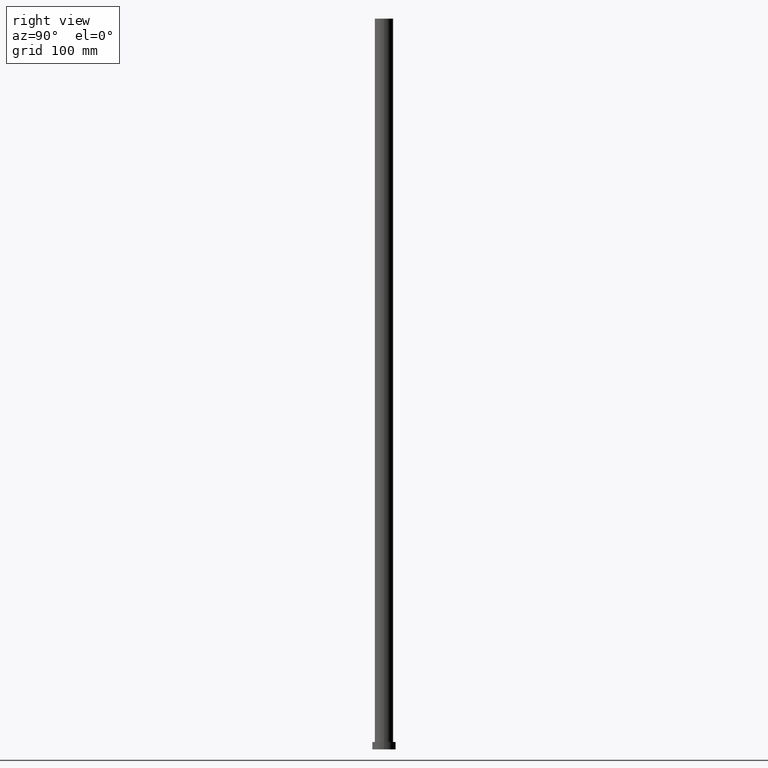
[diagram: clean part render]
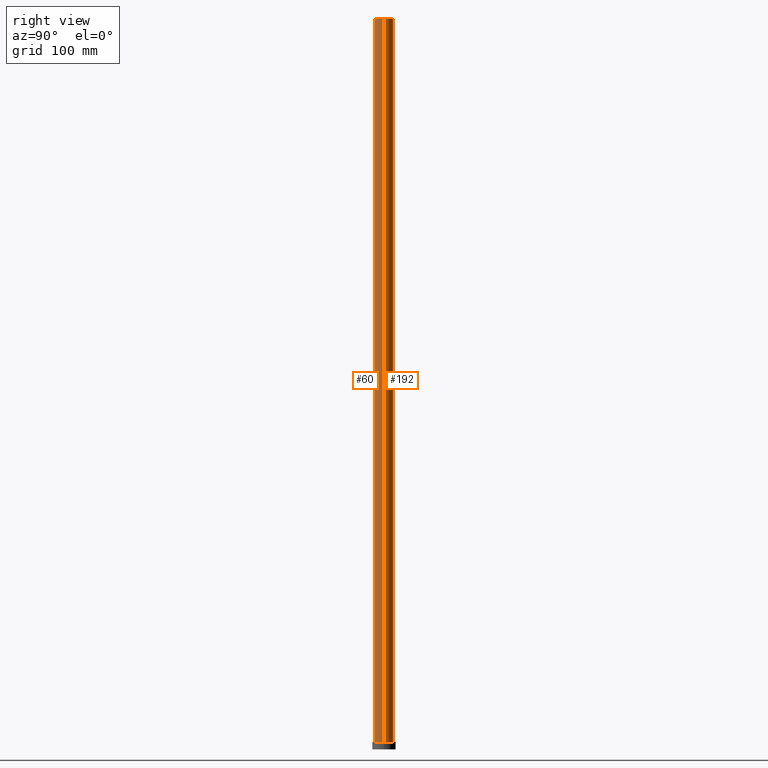
[diagram: same view with one multi-face feature highlighted, each face labeled with its STEP entity id]
A machine part, right view. The highlighted faces form ONE feature: a constant-radius fillet chain: 2 tangent blend faces with common blend radius 12.5 mm. The faces share edges in the B-rep.
Their STEP definitions:
[1] entity #192 (Cylinder):
#4 = CIRCLE ( 'NONE', #148, 12.50000000000000000 ) ;
#12 = DIRECTION ( 'NONE',  ( 0.000000000000000000, 0.000000000000000000, 1.000000000000000000 ) ) ;
#16 = EDGE_CURVE ( 'NONE', #130, #183, #166, .T. ) ;
#24 = DIRECTION ( 'NONE',  ( 1.000000000000000000, 0.000000000000000000, 0.000000000000000000 ) ) ;
#31 = DIRECTION ( 'NONE',  ( -1.000000000000000000, 0.000000000000000000, 0.000000000000000000 ) ) ;
#47 = CARTESIAN_POINT ( 'NONE',  ( 12.50000000000000000, 1.530808498934191521E-15, 1000.000000000000000 ) ) ;
#56 = VECTOR ( 'NONE', #169, 1000.000000000000000 ) ;
#66 = ORIENTED_EDGE ( 'NONE', *, *, #230, .T. ) ;
#68 = EDGE_CURVE ( 'NONE', #183, #238, #115, .T. ) ;
#73 = CARTESIAN_POINT ( 'NONE',  ( -12.50000000000000000, 0.000000000000000000, 1000.000000000000000 ) ) ;
#80 = CARTESIAN_POINT ( 'NONE',  ( -12.50000000000000000, 0.000000000000000000, 10.00000000000000000 ) ) ;
#102 = EDGE_CURVE ( 'NONE', #130, #185, #143, .T. ) ;
#115 = LINE ( 'NONE', #73, #56 ) ;
#123 = CARTESIAN_POINT ( 'NONE',  ( 12.50000000000000000, 1.530808498934191521E-15, 1000.000000000000000 ) ) ;
#124 = EDGE_LOOP ( 'NONE', ( #212, #164, #66, #251 ) ) ;
#127 = AXIS2_PLACEMENT_3D ( 'NONE', #210, #245, #31 ) ;
#129 = CYLINDRICAL_SURFACE ( 'NONE', #127, 12.50000000000000000 ) ;
#130 = VERTEX_POINT ( 'NONE', #47 ) ;
#131 = FACE_OUTER_BOUND ( 'NONE', #124, .T. ) ;
#143 = LINE ( 'NONE', #123, #223 ) ;
#148 = AXIS2_PLACEMENT_3D ( 'NONE', #228, #159, #226 ) ;
#156 = AXIS2_PLACEMENT_3D ( 'NONE', #197, #12, #24 ) ;
#159 = DIRECTION ( 'NONE',  ( 0.000000000000000000, 0.000000000000000000, 1.000000000000000000 ) ) ;
#164 = ORIENTED_EDGE ( 'NONE', *, *, #102, .T. ) ;
#166 = CIRCLE ( 'NONE', #156, 12.50000000000000000 ) ;
#169 = DIRECTION ( 'NONE',  ( -0.000000000000000000, -0.000000000000000000, -1.000000000000000000 ) ) ;
#179 = DIRECTION ( 'NONE',  ( -0.000000000000000000, -0.000000000000000000, -1.000000000000000000 ) ) ;
#183 = VERTEX_POINT ( 'NONE', #236 ) ;
#185 = VERTEX_POINT ( 'NONE', #252 ) ;
#192 = ADVANCED_FACE ( 'NONE', ( #131 ), #129, .T. ) ;
#197 = CARTESIAN_POINT ( 'NONE',  ( 0.000000000000000000, 0.000000000000000000, 1000.000000000000000 ) ) ;
#210 = CARTESIAN_POINT ( 'NONE',  ( 0.000000000000000000, 0.000000000000000000, 1000.000000000000000 ) ) ;
#212 = ORIENTED_EDGE ( 'NONE', *, *, #16, .F. ) ;
#223 = VECTOR ( 'NONE', #179, 1000.000000000000000 ) ;
#226 = DIRECTION ( 'NONE',  ( 1.000000000000000000, 0.000000000000000000, 0.000000000000000000 ) ) ;
#228 = CARTESIAN_POINT ( 'NONE',  ( 0.000000000000000000, 0.000000000000000000, 10.00000000000000000 ) ) ;
#230 = EDGE_CURVE ( 'NONE', #185, #238, #4, .T. ) ;
#236 = CARTESIAN_POINT ( 'NONE',  ( -12.50000000000000000, 0.000000000000000000, 1000.000000000000000 ) ) ;
#238 = VERTEX_POINT ( 'NONE', #80 ) ;
#245 = DIRECTION ( 'NONE',  ( -0.000000000000000000, -0.000000000000000000, -1.000000000000000000 ) ) ;
#251 = ORIENTED_EDGE ( 'NONE', *, *, #68, .F. ) ;
#252 = CARTESIAN_POINT ( 'NONE',  ( 12.50000000000000000, 1.530808498934191521E-15, 10.00000000000000000 ) ) ;
[2] entity #60 (Cylinder):
#19 = ORIENTED_EDGE ( 'NONE', *, *, #102, .F. ) ;
#20 = CIRCLE ( 'NONE', #151, 12.50000000000000000 ) ;
#35 = CARTESIAN_POINT ( 'NONE',  ( 0.000000000000000000, 0.000000000000000000, 1000.000000000000000 ) ) ;
#36 = AXIS2_PLACEMENT_3D ( 'NONE', #247, #146, #227 ) ;
#47 = CARTESIAN_POINT ( 'NONE',  ( 12.50000000000000000, 1.530808498934191521E-15, 1000.000000000000000 ) ) ;
#51 = DIRECTION ( 'NONE',  ( 0.000000000000000000, 0.000000000000000000, 1.000000000000000000 ) ) ;
#56 = VECTOR ( 'NONE', #169, 1000.000000000000000 ) ;
#60 = ADVANCED_FACE ( 'NONE', ( #116 ), #92, .T. ) ;
#68 = EDGE_CURVE ( 'NONE', #183, #238, #115, .T. ) ;
#73 = CARTESIAN_POINT ( 'NONE',  ( -12.50000000000000000, 0.000000000000000000, 1000.000000000000000 ) ) ;
#80 = CARTESIAN_POINT ( 'NONE',  ( -12.50000000000000000, 0.000000000000000000, 10.00000000000000000 ) ) ;
#85 = EDGE_LOOP ( 'NONE', ( #19, #215, #190, #234 ) ) ;
#92 = CYLINDRICAL_SURFACE ( 'NONE', #103, 12.50000000000000000 ) ;
#102 = EDGE_CURVE ( 'NONE', #130, #185, #143, .T. ) ;
#103 = AXIS2_PLACEMENT_3D ( 'NONE', #35, #117, #173 ) ;
#112 = EDGE_CURVE ( 'NONE', #183, #130, #114, .T. ) ;
#114 = CIRCLE ( 'NONE', #36, 12.50000000000000000 ) ;
#115 = LINE ( 'NONE', #73, #56 ) ;
#116 = FACE_OUTER_BOUND ( 'NONE', #85, .T. ) ;
#117 = DIRECTION ( 'NONE',  ( -0.000000000000000000, -0.000000000000000000, -1.000000000000000000 ) ) ;
#123 = CARTESIAN_POINT ( 'NONE',  ( 12.50000000000000000, 1.530808498934191521E-15, 1000.000000000000000 ) ) ;
#130 = VERTEX_POINT ( 'NONE', #47 ) ;
#140 = EDGE_CURVE ( 'NONE', #238, #185, #20, .T. ) ;
#143 = LINE ( 'NONE', #123, #223 ) ;
#146 = DIRECTION ( 'NONE',  ( 0.000000000000000000, 0.000000000000000000, 1.000000000000000000 ) ) ;
#151 = AXIS2_PLACEMENT_3D ( 'NONE', #250, #51, #253 ) ;
#169 = DIRECTION ( 'NONE',  ( -0.000000000000000000, -0.000000000000000000, -1.000000000000000000 ) ) ;
#173 = DIRECTION ( 'NONE',  ( -1.000000000000000000, 0.000000000000000000, 0.000000000000000000 ) ) ;
#179 = DIRECTION ( 'NONE',  ( -0.000000000000000000, -0.000000000000000000, -1.000000000000000000 ) ) ;
#183 = VERTEX_POINT ( 'NONE', #236 ) ;
#185 = VERTEX_POINT ( 'NONE', #252 ) ;
#190 = ORIENTED_EDGE ( 'NONE', *, *, #68, .T. ) ;
#215 = ORIENTED_EDGE ( 'NONE', *, *, #112, .F. ) ;
#223 = VECTOR ( 'NONE', #179, 1000.000000000000000 ) ;
#227 = DIRECTION ( 'NONE',  ( 1.000000000000000000, 0.000000000000000000, 0.000000000000000000 ) ) ;
#234 = ORIENTED_EDGE ( 'NONE', *, *, #140, .T. ) ;
#236 = CARTESIAN_POINT ( 'NONE',  ( -12.50000000000000000, 0.000000000000000000, 1000.000000000000000 ) ) ;
#238 = VERTEX_POINT ( 'NONE', #80 ) ;
#247 = CARTESIAN_POINT ( 'NONE',  ( 0.000000000000000000, 0.000000000000000000, 1000.000000000000000 ) ) ;
#250 = CARTESIAN_POINT ( 'NONE',  ( 0.000000000000000000, 0.000000000000000000, 10.00000000000000000 ) ) ;
#252 = CARTESIAN_POINT ( 'NONE',  ( 12.50000000000000000, 1.530808498934191521E-15, 10.00000000000000000 ) ) ;
#253 = DIRECTION ( 'NONE',  ( 1.000000000000000000, 0.000000000000000000, 0.000000000000000000 ) ) ;